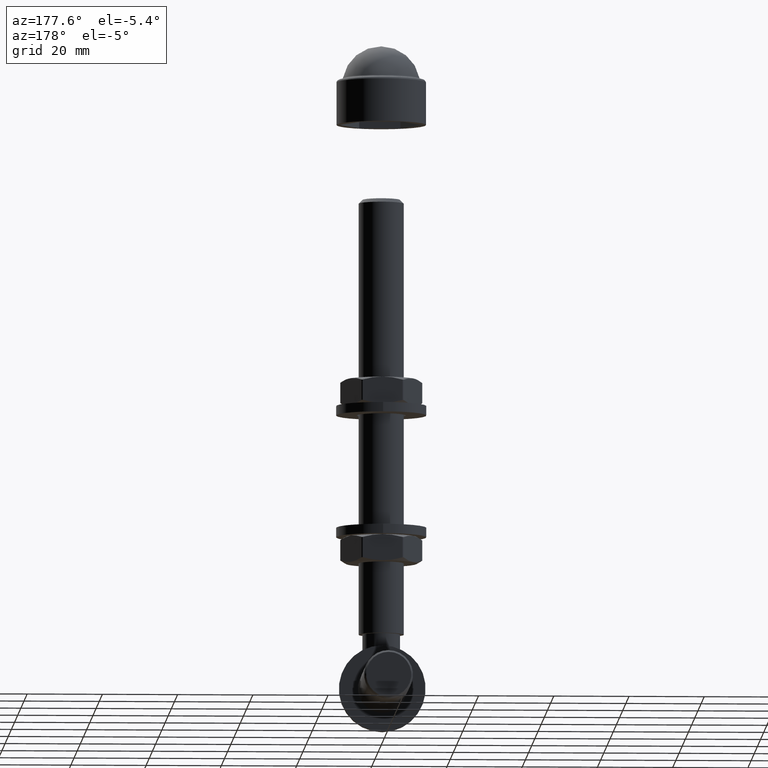
[diagram: clean part render]
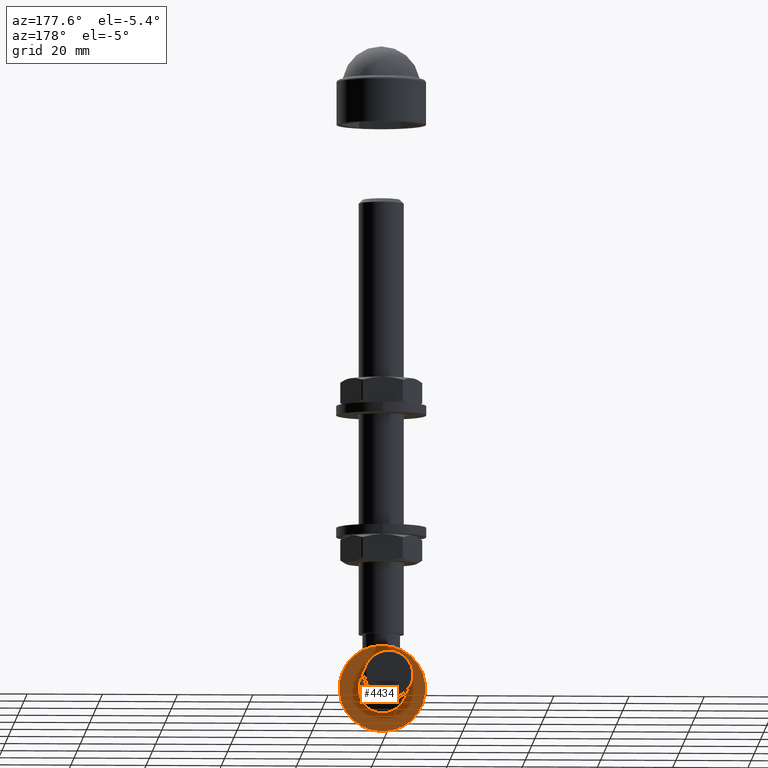
[diagram: same view with one face highlighted and labeled with its STEP entity id]
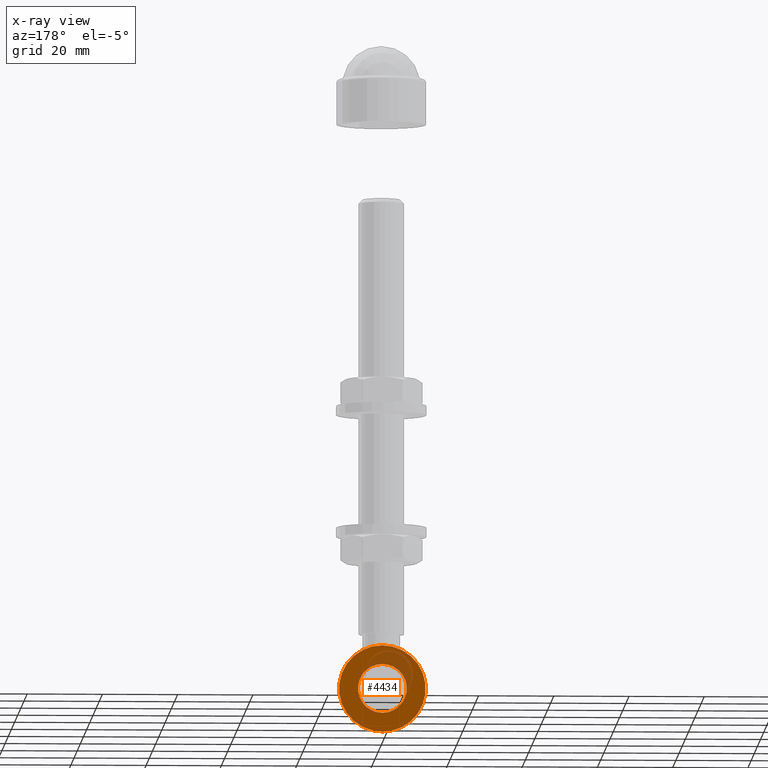
[diagram: x-ray of the same camera — body ghosted, the highlighted face saturated]
A machine part, auxiliary view. The second image highlights one B-rep face of the part: STEP entity #4434.
The next image is the same camera in x-ray: the body ghosted, the highlighted face saturated — about 19% of this face is hidden behind the body in this view.
In plain terms, the highlighted planar face has unit normal (0, 1, 0).
Its self-contained STEP definition (entity closure, byte-faithful):
#325 = DIRECTION ( 'NONE',  ( 0.000000000000000000, 0.000000000000000000, -1.000000000000000000 ) ) ;
#390 = FACE_BOUND ( 'NONE', #9020, .T. ) ;
#476 = ORIENTED_EDGE ( 'NONE', *, *, #13374, .T. ) ;
#545 = DIRECTION ( 'NONE',  ( 0.000000000000000000, 0.000000000000000000, -1.000000000000000000 ) ) ;
#1684 = AXIS2_PLACEMENT_3D ( 'NONE', #8927, #4160, #545 ) ;
#2237 = VERTEX_POINT ( 'NONE', #6691 ) ;
#4160 = DIRECTION ( 'NONE',  ( -0.000000000000000000, -1.000000000000000000, -0.000000000000000000 ) ) ;
#4434 = ADVANCED_FACE ( 'NONE', ( #390, #7504 ), #10700, .T. ) ;
#4967 = EDGE_LOOP ( 'NONE', ( #14742 ) ) ;
#5968 = CARTESIAN_POINT ( 'NONE',  ( 0.000000000000000000, 7.199999999999980638, -61.00000000000001421 ) ) ;
#6691 = CARTESIAN_POINT ( 'NONE',  ( 0.000000000000000000, 7.199999999999980638, -67.50000000000002842 ) ) ;
#7504 = FACE_OUTER_BOUND ( 'NONE', #4967, .T. ) ;
#8157 = CARTESIAN_POINT ( 'NONE',  ( 0.000000000000000000, 7.199999999999980638, -67.50000000000002842 ) ) ;
#8352 = AXIS2_PLACEMENT_3D ( 'NONE', #8157, #9371, #11728 ) ;
#8406 = AXIS2_PLACEMENT_3D ( 'NONE', #5968, #14338, #325 ) ;
#8927 = CARTESIAN_POINT ( 'NONE',  ( 0.000000000000000000, 7.199999999999981526, -61.00000000000001421 ) ) ;
#9020 = EDGE_LOOP ( 'NONE', ( #476 ) ) ;
#9371 = DIRECTION ( 'NONE',  ( 0.000000000000000000, 1.000000000000000000, 0.000000000000000000 ) ) ;
#10700 = PLANE ( 'NONE',  #8352 ) ;
#11261 = CARTESIAN_POINT ( 'NONE',  ( 0.000000000000000000, 7.199999999999981526, -72.50000000000001421 ) ) ;
#11728 = DIRECTION ( 'NONE',  ( 0.000000000000000000, -0.000000000000000000, 1.000000000000000000 ) ) ;
#12973 = CIRCLE ( 'NONE', #8406, 6.500000000000019540 ) ;
#13088 = EDGE_CURVE ( 'NONE', #13637, #13637, #14659, .T. ) ;
#13374 = EDGE_CURVE ( 'NONE', #2237, #2237, #12973, .T. ) ;
#13637 = VERTEX_POINT ( 'NONE', #11261 ) ;
#14338 = DIRECTION ( 'NONE',  ( -0.000000000000000000, -1.000000000000000000, -0.000000000000000000 ) ) ;
#14659 = CIRCLE ( 'NONE', #1684, 11.49999999999999645 ) ;
#14742 = ORIENTED_EDGE ( 'NONE', *, *, #13088, .F. ) ;